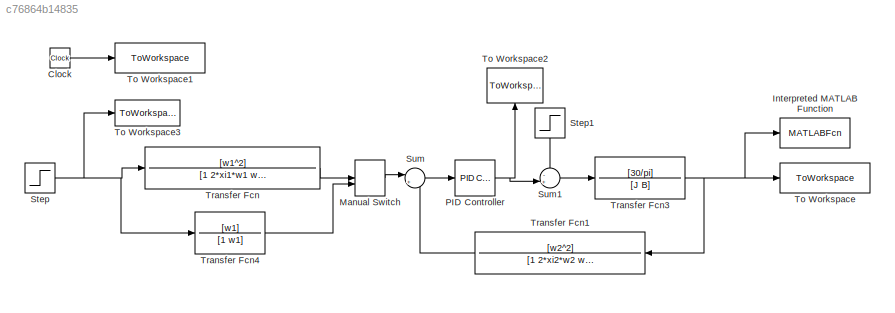
MODEL slx_c76864b14835
KIND model
CONFIG AbsTol = auto
CONFIG EnableMultiTasking = off
CONFIG FixedStep = auto
CONFIG MaxStep = auto
CONFIG MinStep = auto
CONFIG RelTol = 1e-3
CONFIG SampleTimeConstraint = Unconstrained
CONFIG Solver = VariableStepAuto
CONFIG SolverName = VariableStepAuto
CONFIG StartTime = 0.0
CONFIG StopTime = 0.25
BLOCK [Clock] Clock
BLOCK [MATLABFcn] Interpreted MATLAB Function
  MATLABFcn = fprintf(s1,sprintf('%0.4f',u(1)))
  OutputDimensions = 0
  Ports = [1]
BLOCK [ManualSwitch] Manual Switch
  CurrentSetting = 0
BLOCK [Reference] PID Controller  REF=simulink/Continuous/PID Controller
  Ports = [1, 1]
  SourceBlock = simulink/Continuous/PID Controller
  SourceProductBaseCode = SL
  SourceProductName = Simulink
  SourceType = PID 1dof
BLOCK [Step] Step
  After = SetPoint*10
  SampleTime = 0
  Time = 0
BLOCK [Step] Step1
  After = 0.1
  SampleTime = 0
  Time = 0.125
BLOCK [Sum] Sum
  IconShape = round
  InputSameDT = off
  Inputs = |+-
  OutDataTypeStr = Inherit: Inherit via internal rule
  Ports = [2, 1]
  SaturateOnIntegerOverflow = off
BLOCK [Sum] Sum1
  IconShape = round
  InputSameDT = off
  Inputs = -+|
  OutDataTypeStr = Inherit: Inherit via internal rule
  Ports = [2, 1]
  SaturateOnIntegerOverflow = off
BLOCK [ToWorkspace] To Workspace
  FixptAsFi = on
  MaxDataPoints = inf
  Ports = [1]
  SampleTime = -1
  VariableName = y
BLOCK [ToWorkspace] To Workspace1
  FixptAsFi = on
  MaxDataPoints = inf
  Ports = [1]
  SampleTime = -1
  VariableName = t
BLOCK [ToWorkspace] To Workspace2
  FixptAsFi = on
  MaxDataPoints = inf
  Ports = [1]
  SampleTime = -1
  VariableName = w
BLOCK [ToWorkspace] To Workspace3
  FixptAsFi = on
  MaxDataPoints = inf
  Ports = [1]
  SampleTime = -1
  VariableName = u
BLOCK [TransferFcn] Transfer Fcn
  Denominator = [1 2*xi1*w1 w1^2]
  Numerator = [w1^2]
BLOCK [TransferFcn] Transfer Fcn1
  Denominator = [1 2*xi2*w2 w2^2]
  Numerator = [w2^2]
BLOCK [TransferFcn] Transfer Fcn3
  Denominator = [J B]
  Numerator = [30/pi]
BLOCK [TransferFcn] Transfer Fcn4
  Denominator = [1 w1]
  Numerator = [w1]
LINE Clock:1 -> To Workspace1:1
LINE Manual Switch:1 -> Sum:1
NET PID Controller:1 -> Sum1:2, To Workspace2:1
LINE Step1:1 -> Sum1:1
NET Step:1 -> To Workspace3:1, Transfer Fcn4:1, Transfer Fcn:1
LINE Sum1:1 -> Transfer Fcn3:1
LINE Sum:1 -> PID Controller:1
LINE Transfer Fcn1:1 -> Sum:2
NET Transfer Fcn3:1 -> Interpreted MATLAB Function:1, To Workspace:1, Transfer Fcn1:1
LINE Transfer Fcn4:1 -> Manual Switch:2
LINE Transfer Fcn:1 -> Manual Switch:1
note: NET lines group one-source signal fan-out (src -> all destinations, sorted); 1:1 wires keep LINE
